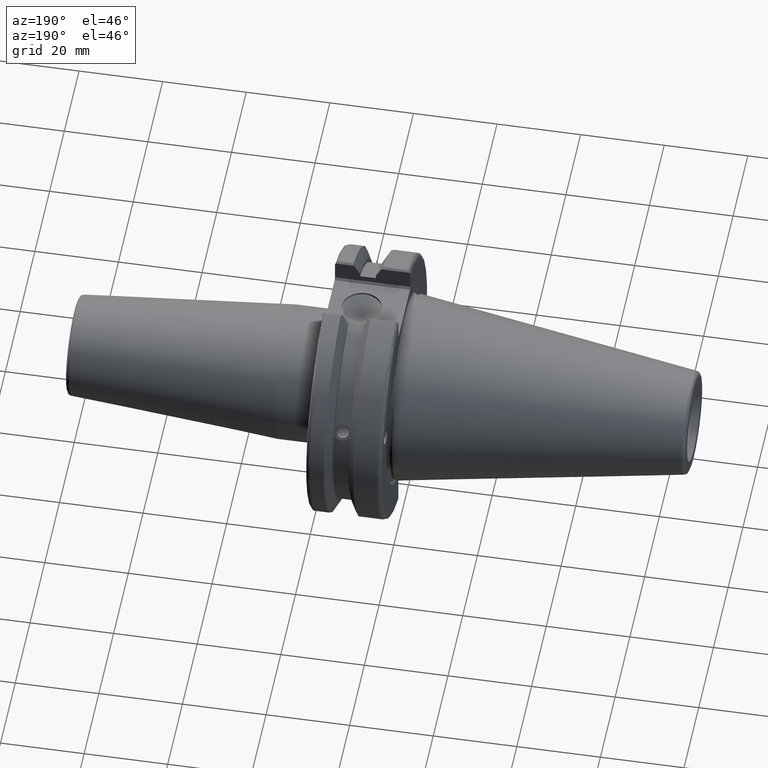
[diagram: clean part render]
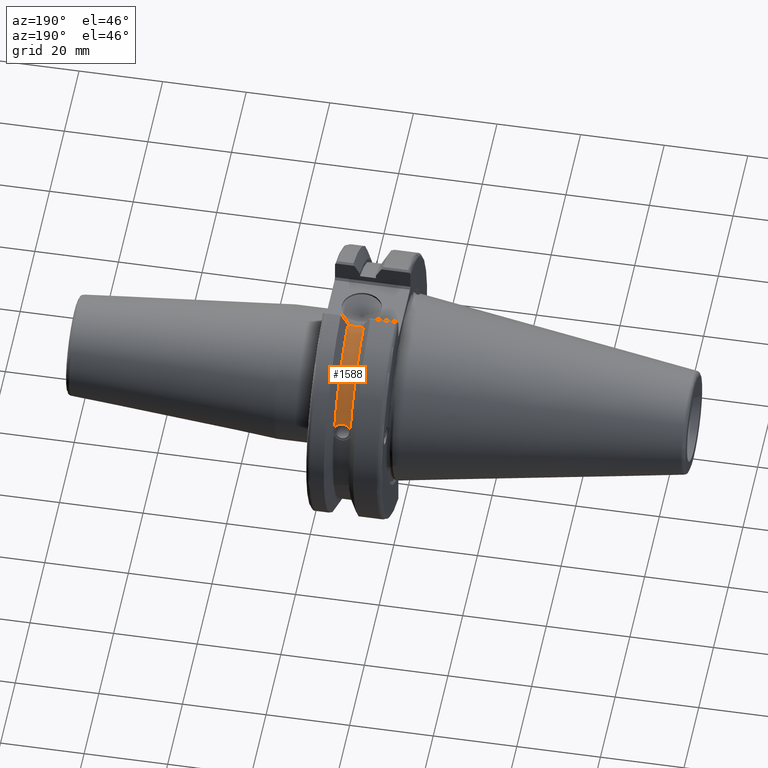
[diagram: same view with one face highlighted and labeled with its STEP entity id]
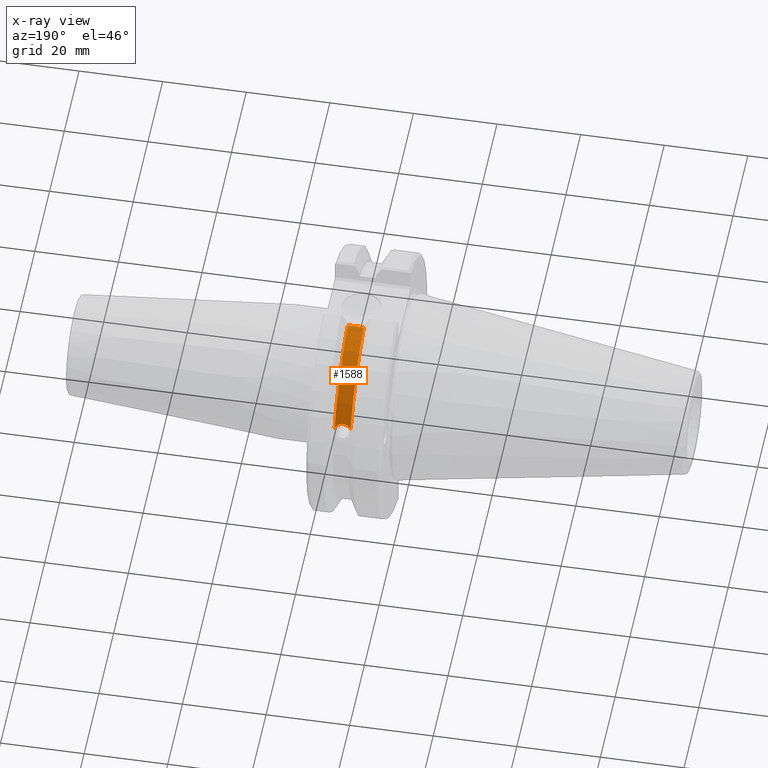
[diagram: x-ray of the same camera — body ghosted, the highlighted face saturated]
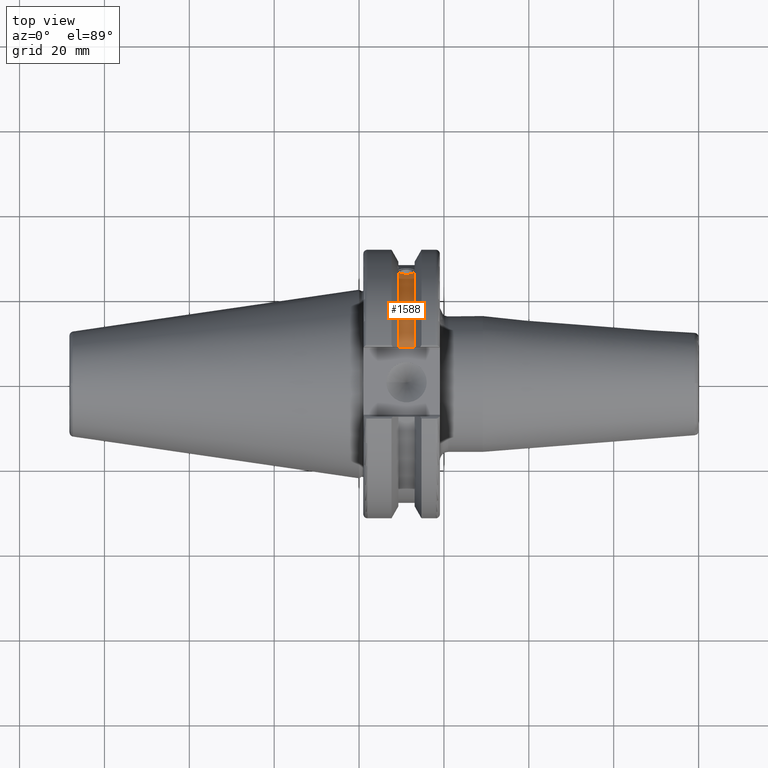
[diagram: same view with one face highlighted and labeled with its STEP entity id]
A machine part, auxiliary view. The second image highlights one B-rep face of the part: STEP entity #1588.
The next image is the same camera in x-ray: the body ghosted, the highlighted face saturated — about 0% of this face is hidden behind the body in this view.
A second angle (top view) of the same face is appended — the face is thin or edge-on in the first view.
In plain terms, the highlighted cylindrical surface (partial cylindrical patch) has radius 28.15 mm, axis along (1, 0, 0).
Its self-contained STEP definition (entity closure, byte-faithful):
#63=B_SPLINE_CURVE_WITH_KNOTS('',3,(#2649,#2650,#2651,#2652,#2653,#2654,
#2655,#2656,#2657,#2658,#2659,#2660,#2661,#2662,#2663),.UNSPECIFIED.,.F.,
 .F.,(4,2,2,3,2,2,4),(-0.231446873660084,-0.158271583089134,-0.0791357915445672,
0.,0.0791357915445672,0.158271583089134,0.231446873660465),
 .UNSPECIFIED.);
#106=CYLINDRICAL_SURFACE('',#1781,28.15);
#247=LINE('',#2992,#343);
#343=VECTOR('',#2171,10.);
#444=FACE_OUTER_BOUND('',#546,.T.);
#546=EDGE_LOOP('',(#1442,#1443,#1444,#1445));
#626=CIRCLE('',#1780,28.15);
#627=CIRCLE('',#1782,28.15);
#717=VERTEX_POINT('',#2646);
#718=VERTEX_POINT('',#2648);
#783=VERTEX_POINT('',#2989);
#784=VERTEX_POINT('',#2991);
#900=EDGE_CURVE('',#718,#717,#63,.T.);
#1001=EDGE_CURVE('',#784,#783,#247,.T.);
#1015=EDGE_CURVE('',#718,#783,#626,.T.);
#1016=EDGE_CURVE('',#717,#784,#627,.T.);
#1442=ORIENTED_EDGE('',*,*,#900,.T.);
#1443=ORIENTED_EDGE('',*,*,#1016,.T.);
#1444=ORIENTED_EDGE('',*,*,#1001,.T.);
#1445=ORIENTED_EDGE('',*,*,#1015,.F.);
#1588=ADVANCED_FACE('',(#444),#106,.T.);
#1780=AXIS2_PLACEMENT_3D('',#3023,#2210,#2211);
#1781=AXIS2_PLACEMENT_3D('',#3024,#2212,#2213);
#1782=AXIS2_PLACEMENT_3D('',#3025,#2214,#2215);
#2171=DIRECTION('',(1.,0.,0.));
#2210=DIRECTION('center_axis',(1.,0.,0.));
#2211=DIRECTION('ref_axis',(0.,0.,-1.));
#2212=DIRECTION('center_axis',(1.,0.,0.));
#2213=DIRECTION('ref_axis',(0.,1.,0.));
#2214=DIRECTION('center_axis',(1.,0.,0.));
#2215=DIRECTION('ref_axis',(0.,0.,-1.));
#2646=CARTESIAN_POINT('',(9.261,26.1451788594704,10.4332220529567));
#2648=CARTESIAN_POINT('',(13.091,26.1451788594704,10.4332220529567));
#2649=CARTESIAN_POINT('Ctrl Pts',(13.091,26.1451788594704,10.4332220529567));
#2650=CARTESIAN_POINT('Ctrl Pts',(12.9847694290343,26.0576536126147,10.6525563316815));
#2651=CARTESIAN_POINT('Ctrl Pts',(12.833279862294,25.9751489313128,10.8509873904882));
#2652=CARTESIAN_POINT('Ctrl Pts',(12.4745293734259,25.8346412777187,11.1816210830117));
#2653=CARTESIAN_POINT('Ctrl Pts',(12.2384549887012,25.7695111693635,11.3298867884858));
#2654=CARTESIAN_POINT('Ctrl Pts',(11.7210874573612,25.6822868299377,11.5262389251846));
#2655=CARTESIAN_POINT('Ctrl Pts',(11.4397859718152,25.6603958057616,11.5743935949859));
#2656=CARTESIAN_POINT('Ctrl Pts',(11.176,25.6603958057616,11.5743935949859));
#2657=CARTESIAN_POINT('Ctrl Pts',(10.9122140281848,25.6603958057616,11.5743935949859));
#2658=CARTESIAN_POINT('Ctrl Pts',(10.6309125426388,25.6822868299377,11.5262389251846));
#2659=CARTESIAN_POINT('Ctrl Pts',(10.1135450112988,25.7695111693635,11.3298867884858));
#2660=CARTESIAN_POINT('Ctrl Pts',(9.8774706265741,25.8346412777187,11.1816210830117));
#2661=CARTESIAN_POINT('Ctrl Pts',(9.5187201377051,25.9751489313131,10.8509873904873));
#2662=CARTESIAN_POINT('Ctrl Pts',(9.36723057097183,26.0576536126096,10.6525563316942));
#2663=CARTESIAN_POINT('Ctrl Pts',(9.261,26.1451788594704,10.4332220529567));
#2989=CARTESIAN_POINT('',(13.091,8.19,26.932255754021));
#2991=CARTESIAN_POINT('',(9.261,8.19,26.932255754021));
#2992=CARTESIAN_POINT('',(11.176,8.19,26.932255754021));
#3023=CARTESIAN_POINT('Origin',(13.091,0.,0.));
#3024=CARTESIAN_POINT('Origin',(11.176,0.,0.));
#3025=CARTESIAN_POINT('Origin',(9.261,0.,0.));